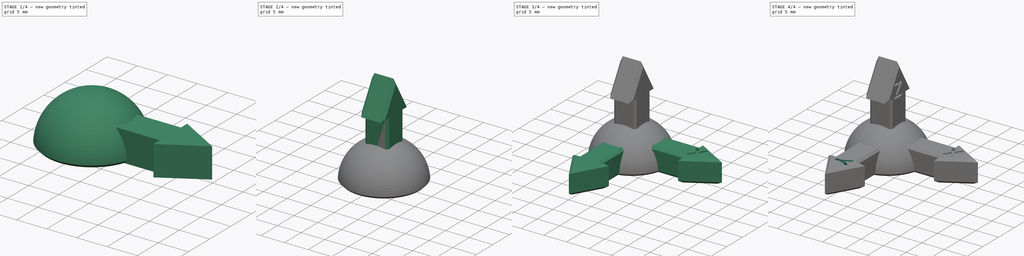
[diagram: build sequence overview — one tinted view per stage of 4, left to right]
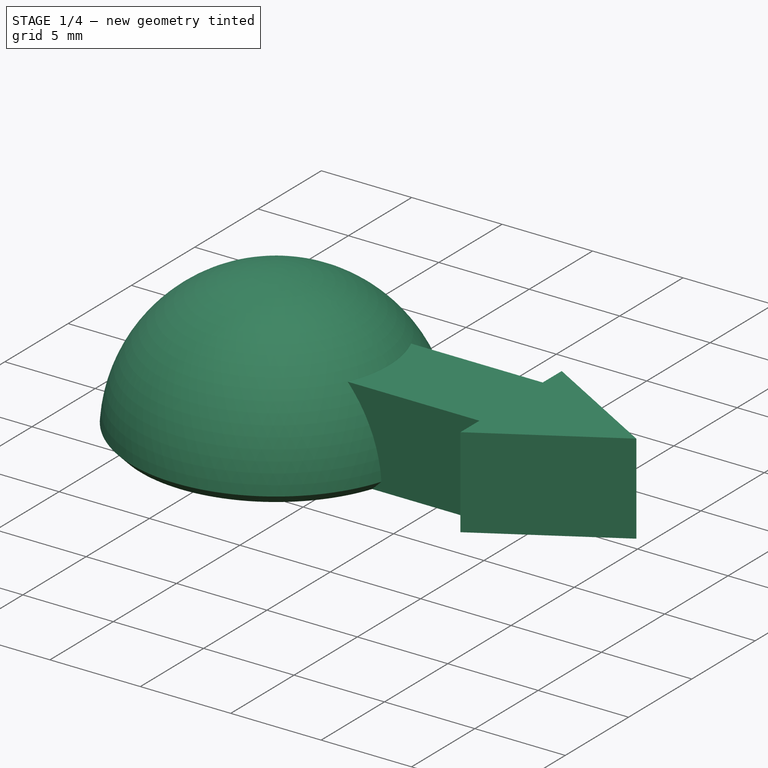
[diagram: stage 1 of 4 — iso view after this stage's code; geometry added in this stage tinted green]
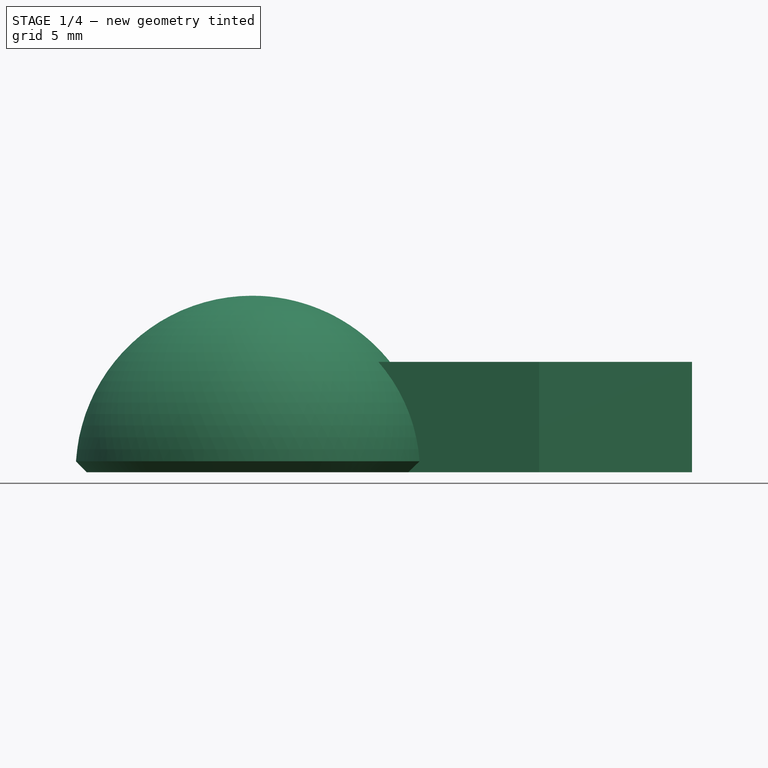
[diagram: stage 1 of 4 — front view after this stage's code; geometry added in this stage tinted green]
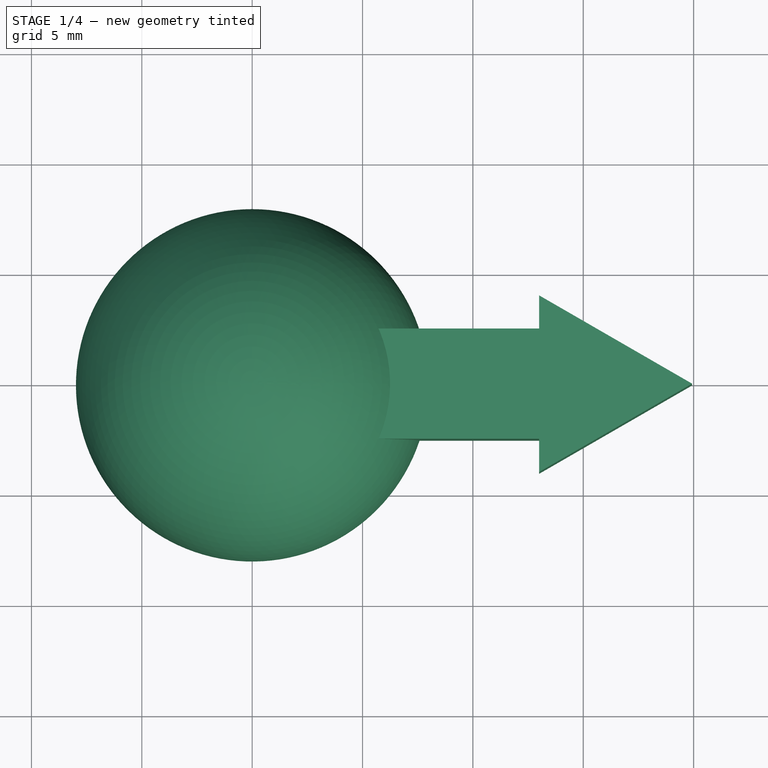
[diagram: stage 1 of 4 — top view after this stage's code; geometry added in this stage tinted green]
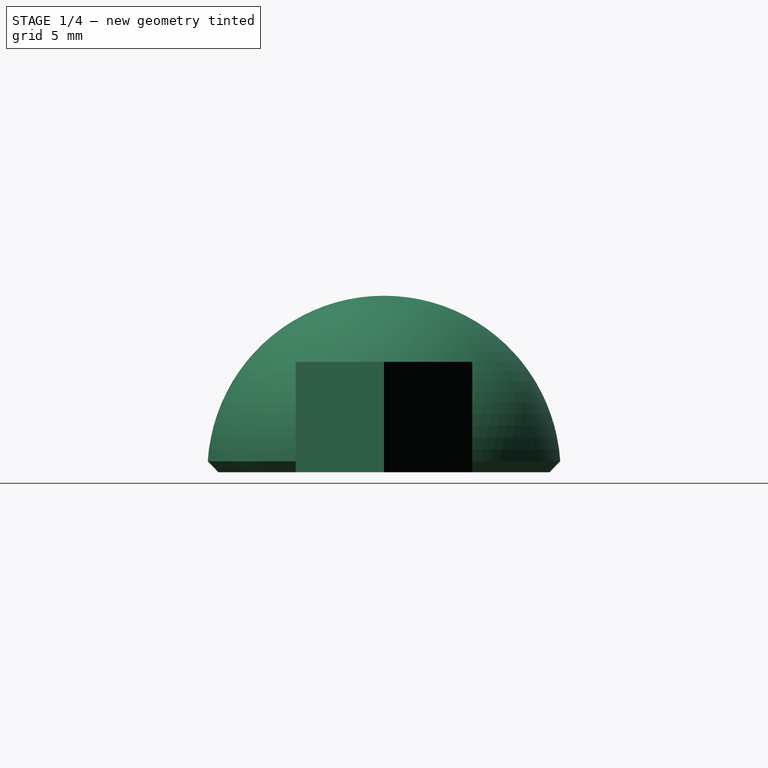
[diagram: stage 1 of 4 — right view after this stage's code; geometry added in this stage tinted green]
FCSTD DOCUMENT  (FreeCAD 0.19R)
Label: TECHDRAW
License: All rights reserved
LicenseURL: http://en.wikipedia.org/wiki/All_rights_reserved
objects: TechDraw::DrawProjGroupItem×30, TechDraw::DrawProjGroup×12, Part::Extrusion×4, Part::Part2DObjectPython×3, Part::Cut×3, Part::Chamfer×2, Part::FeaturePython×2, Spreadsheet::Sheet×1, Sketcher::SketchObject×1, Part::Sphere×1, Part::MultiFuse×1, TechDraw::DrawSVGTemplate×1, TechDraw::DrawPage×1
note: 17 computed .brp shape members not serialized (recipe doc carries the construction recipe); baked Part::Feature solids carry a one-line shape summary decoded from their .brp

FEATURE [Spreadsheet::Sheet] Spreadsheet
  cells = B1=largura; C1=Comprimento; D1=Altura; E1=diametro; A2=Reta; B2(lreta)=5; C2(creta)=13; A3=Seta; B3(lseta)=8; D3(hseta)=5; A4=Esfera; E4(diametro)=8
FEATURE [Sketcher::SketchObject] Sketch
  FullyConstrained = true
  expr: Constraints[23] = Spreadsheet.lseta
  expr: Constraints[22] = Spreadsheet.creta
  expr: Constraints[21] = Spreadsheet.lreta
  sketch-geometry (9):
    g0: LineSegment StartX=0 StartY=-2.5 StartZ=0 EndX=13 EndY=-2.5 EndZ=0
    g1: LineSegment StartX=13 StartY=-2.5 StartZ=0 EndX=13 EndY=2.5 EndZ=0
    g2: LineSegment StartX=13 StartY=2.5 StartZ=0 EndX=0 EndY=2.5 EndZ=0
    g3: LineSegment StartX=0 StartY=2.5 StartZ=0 EndX=0 EndY=-2.5 EndZ=0
    g4: LineSegment StartX=13 StartY=2.5 StartZ=0 EndX=13 EndY=4 EndZ=0
    g5: LineSegment StartX=13 StartY=4 StartZ=0 EndX=19.9282 EndY=0 EndZ=0
    g6: LineSegment StartX=19.9282 StartY=-1e-16 StartZ=0 EndX=13 EndY=-4 EndZ=0
    g7: LineSegment StartX=13 StartY=-4 StartZ=0 EndX=13 EndY=-2.5 EndZ=0
    g8: LineSegment StartX=13 StartY=-1e-16 StartZ=0 EndX=19.9282 EndY=-1e-16 EndZ=0
  constraints (24):
    c: Coincident(g0,g1)
    c: Coincident(g1,g2)
    c: Coincident(g2,g3)
    c: Coincident(g3,g0)
    c: Horizontal(g0)
    c: Horizontal(g2)
    c: Vertical(g1)
    c: Vertical(g3)
    c: Symmetric(g3,g3,g-1)
    c: Coincident(g2,g4)
    c: Vertical(g4)
    c: Coincident(g4,g5)
    c: Coincident(g5,g6)
    c: Coincident(g6,g7)
    c: Coincident(g7,g0)
    c: Vertical(g7)
    c: Coincident(g8,g5)
    c: Horizontal(g8)
    c: Angle(g5,g8) = 0.523599
    c: Symmetric(g1,g1,g8)
    c: Equal(g6,g5)
    c: DistanceY(g3,g3) = 5
    c: DistanceX(g2,g2) = 13
    c: DistanceY(g6,g4) = 8
FEATURE [Part::Extrusion] Extrude  label="Seta"
  Base = -> Sketch
  Dir = (0,0,1)
  DirMode = 2
  FaceMakerClass = Part::FaceMakerBullseye
  LengthFwd = 5
  LengthRev = 0
  Solid = true
  Symmetric = false
  expr: LengthFwd = Spreadsheet.hseta
FEATURE [Part::Sphere] Sphere
  Angle1 = 0
  Angle2 = 90
  Angle3 = 360
  AttacherType = Attacher::AttachEngine3D
  Radius = 8
  expr: Radius = Spreadsheet.diametro
FEATURE [Part::Chamfer] Chamfer001
  Base = -> Sphere
  Edges = 1 edges r=0.5: [Edge3]
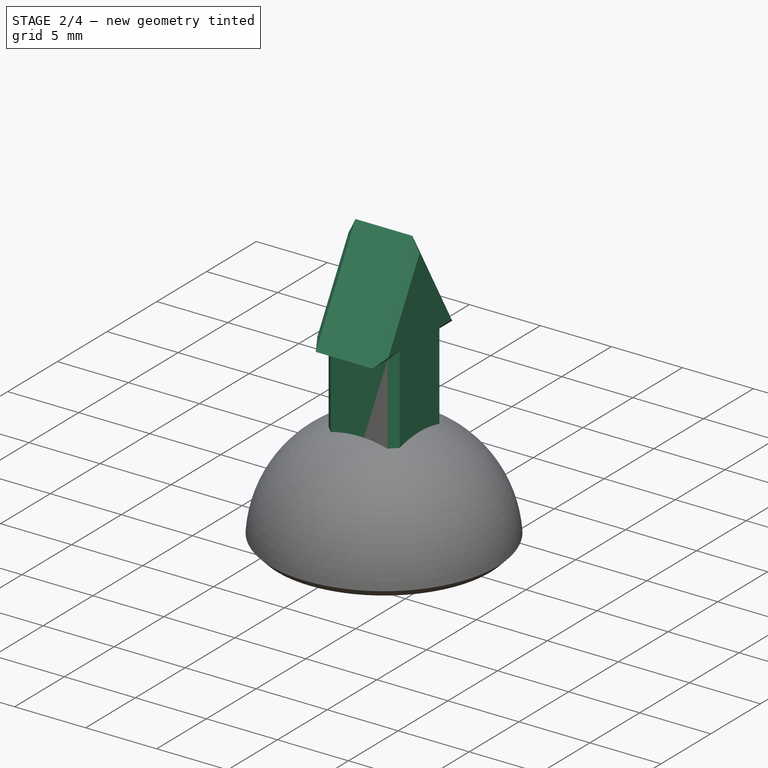
[diagram: stage 2 of 4 — iso view after this stage's code; geometry added in this stage tinted green]
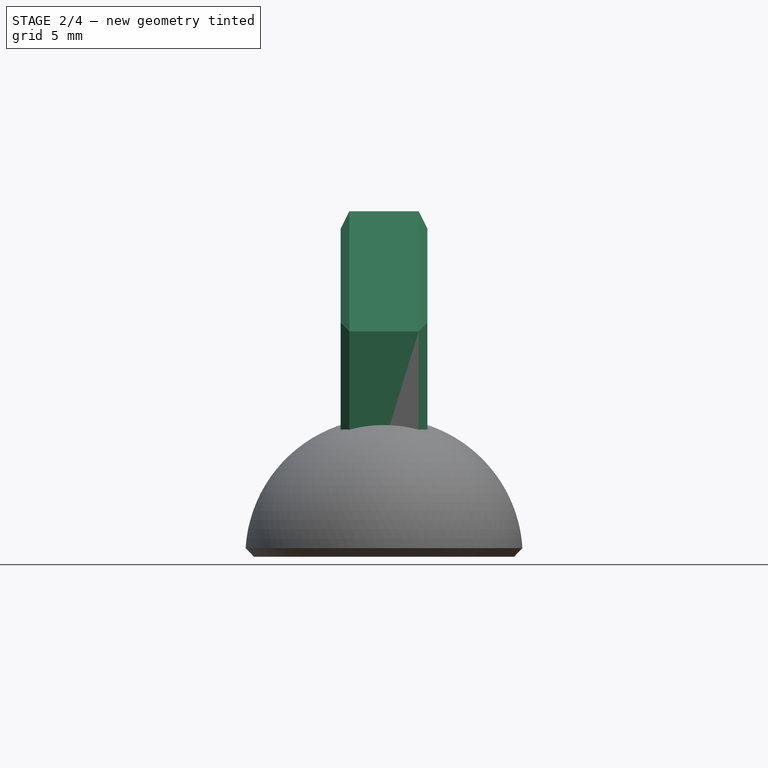
[diagram: stage 2 of 4 — front view after this stage's code; geometry added in this stage tinted green]
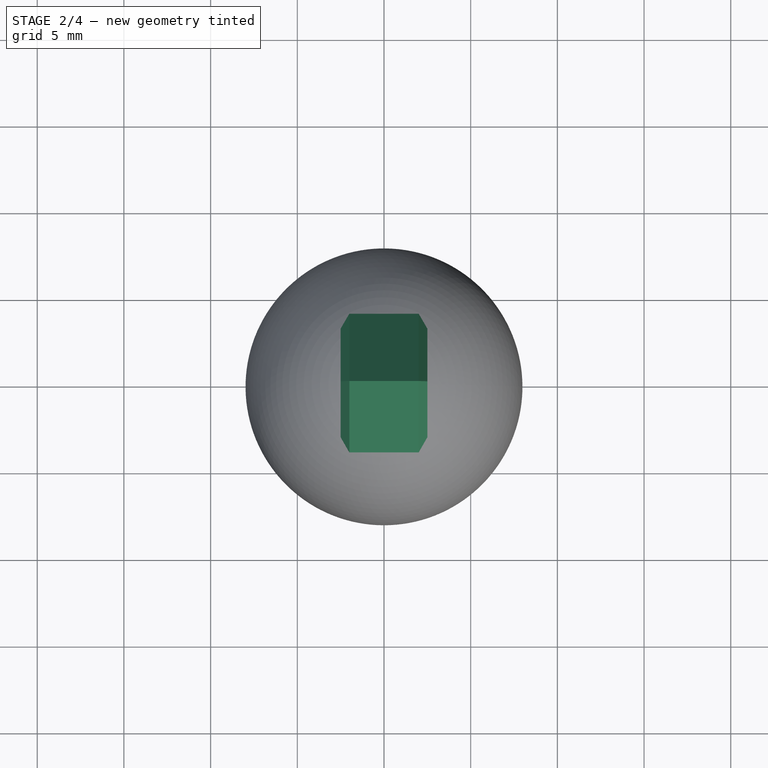
[diagram: stage 2 of 4 — top view after this stage's code; geometry added in this stage tinted green]
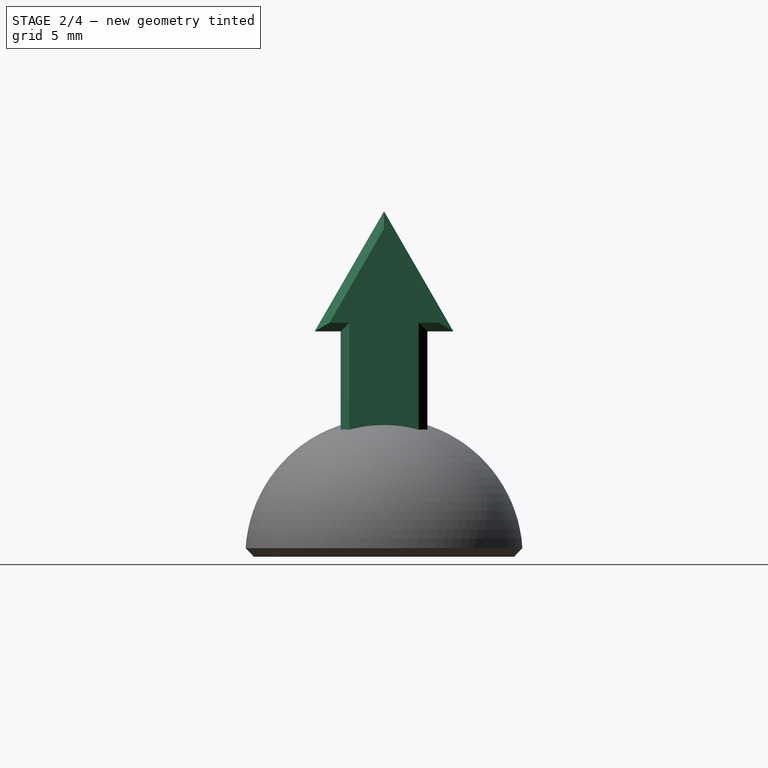
[diagram: stage 2 of 4 — right view after this stage's code; geometry added in this stage tinted green]
FEATURE [Part::Chamfer] Chamfer
  Base = -> Extrude
  Edges = 14 edges r=0.5: [Edge3,Edge4,Edge6,Edge7,Edge9,Edge10,Edge12,Edge13,Edge15,Edge16,Edge18,Edge19,Edge20,Edge21]
FEATURE [Part::FeaturePython] Clone  label="Chamfer"  # Draft clone (typed FeaturePython)
  AttacherType = Attacher::AttachEngine3D
  Fuse = false
  Objects = -> [Chamfer]
  Placement = pos=(0,0,0) rot=(0,0,-1;1.5708rad)
  Scale = (1,1,1)
FEATURE [Part::FeaturePython] Clone001  label="Chamfer"  # Draft clone (typed FeaturePython)
  AttacherType = Attacher::AttachEngine3D
  Fuse = false
  Objects = -> [Clone]
  Placement = pos=(2.5,0,0) rot=(0,-1,0;1.5708rad)
  Scale = (1,1,1)
  expr: .Placement.Base.x = Spreadsheet.lreta / 2
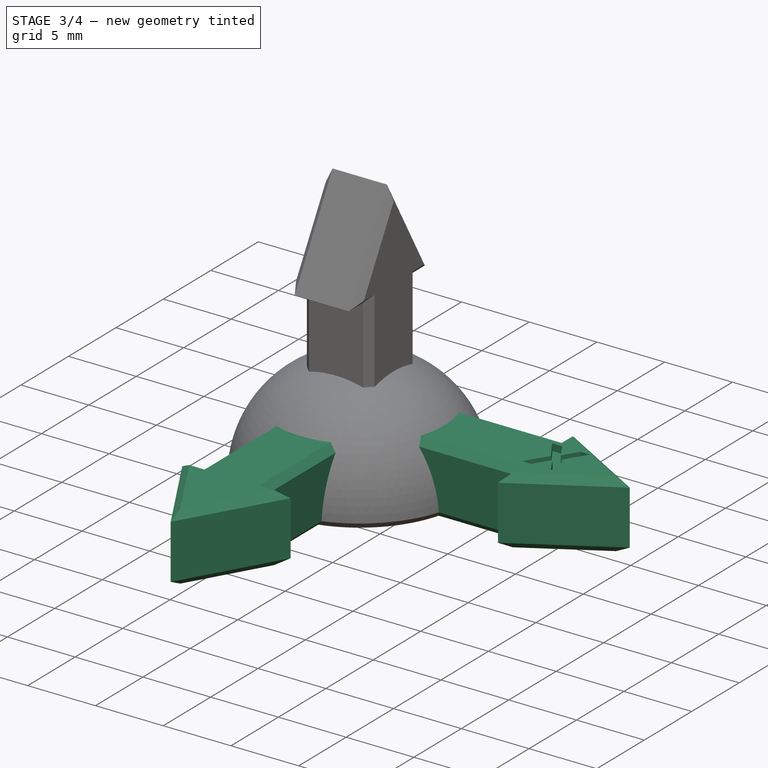
[diagram: stage 3 of 4 — iso view after this stage's code; geometry added in this stage tinted green]
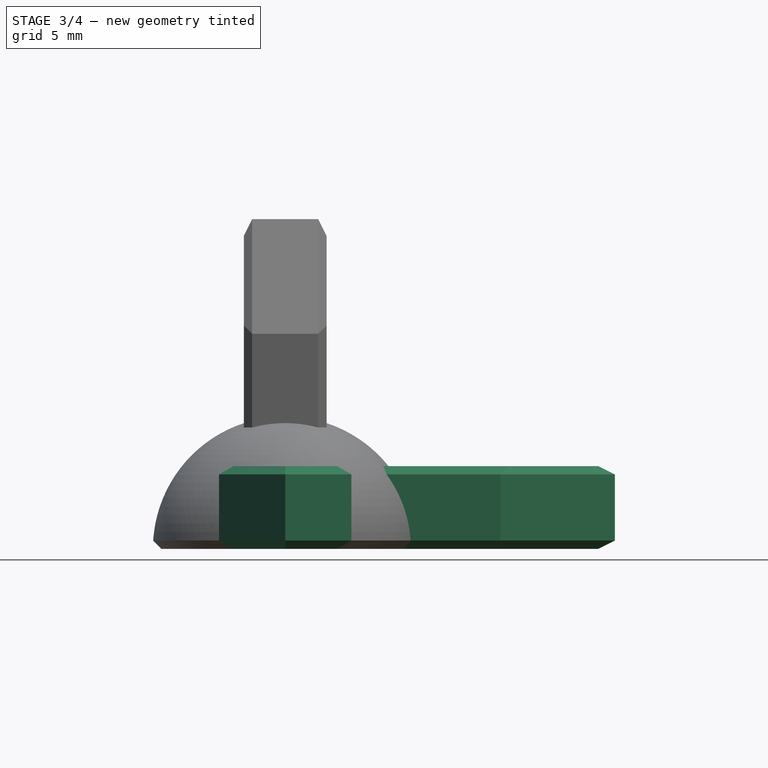
[diagram: stage 3 of 4 — front view after this stage's code; geometry added in this stage tinted green]
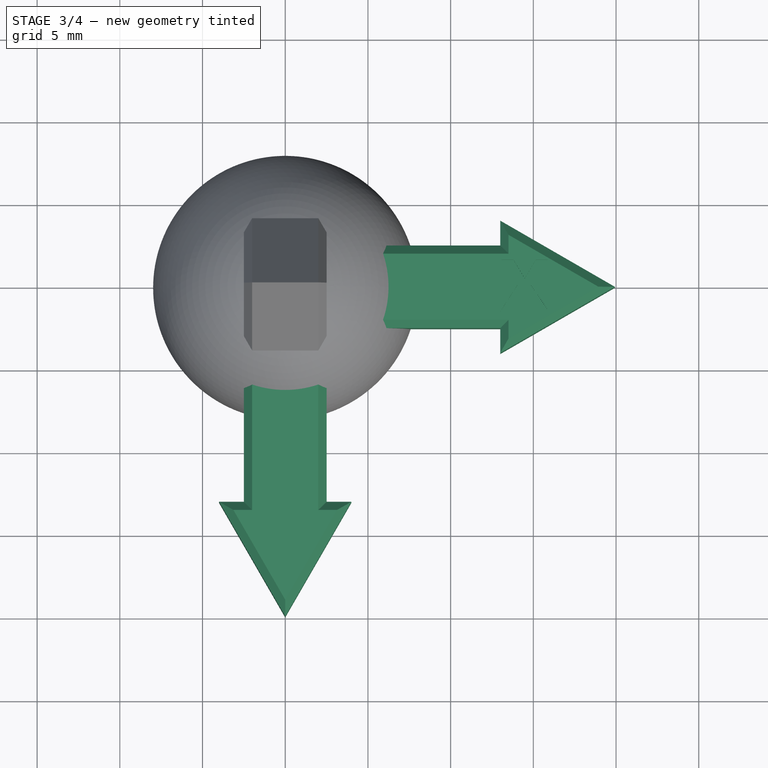
[diagram: stage 3 of 4 — top view after this stage's code; geometry added in this stage tinted green]
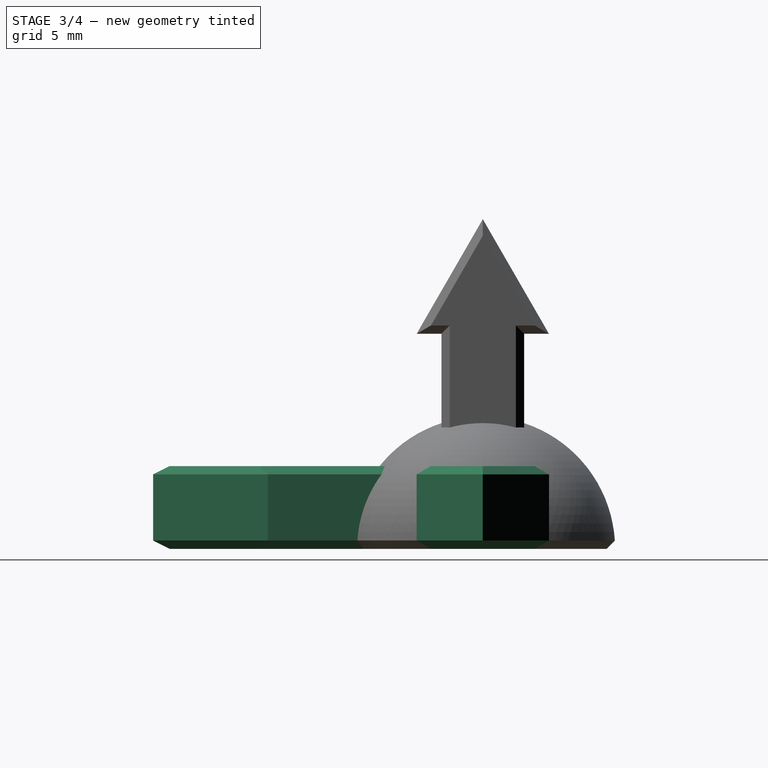
[diagram: stage 3 of 4 — right view after this stage's code; geometry added in this stage tinted green]
FEATURE [Part::Part2DObjectPython] ShapeString  label="X"  # Draft 2D object (typed FeaturePython)
  FontFile = <path>
  Placement = pos=(13,-1.5,5) rot=(0,0,1;0rad)
  Size = 4
  String = X
  Tracking = 0
  expr: Size = 4 * Spreadsheet.lreta / 5
  expr: .Placement.Base.x = Spreadsheet.creta
  expr: .Placement.Base.z = Spreadsheet.hseta
FEATURE [Part::Part2DObjectPython] ShapeString001  label="Y"  # Draft 2D object (typed FeaturePython)
  FontFile = <path>
  Placement = pos=(-1.5,-13,5) rot=(0,0,-1;1.5708rad)
  Size = 4
  String = Y
  Tracking = 0
  expr: .Placement.Base.z = Spreadsheet.hseta
  expr: Size = 4 * Spreadsheet.lreta / 5
  expr: .Placement.Base.y = -Spreadsheet.creta
FEATURE [Part::Part2DObjectPython] ShapeString002  label="Z"  # Draft 2D object (typed FeaturePython)
  FontFile = <path>
  Placement = pos=(2.5,-1.5,13) rot=(0.57735,0.57735,0.57735;2.0944rad)
  Size = 4
  String = Z
  Tracking = 0
  expr: Size = 4 * Spreadsheet.lreta / 5
  expr: .Placement.Base.x = Spreadsheet.hseta / 2
  expr: .Placement.Base.z = Spreadsheet.creta
FEATURE [Part::Extrusion] Extrude001
  Base = -> ShapeString
  Dir = (0,0,1)
  DirMode = 2
  FaceMakerClass = Part::FaceMakerBullseye
  LengthFwd = 0.5
  LengthRev = 0
  Reversed = true
  Solid = false
  Symmetric = false
FEATURE [Part::Extrusion] Extrude003
  Base = -> ShapeString002
  Dir = (1,-2e-16,2e-16)
  DirMode = 2
  FaceMakerClass = Part::FaceMakerBullseye
  LengthFwd = 0.5
  LengthRev = 0
  Reversed = true
  Solid = false
  Symmetric = false
FEATURE [Part::MultiFuse] Fusion
  Refine = true
  Shapes = -> [Chamfer001,Clone,Clone001,Chamfer]
FEATURE [Part::Cut] Cut
  Base = -> Fusion
  Refine = true
  Tool = -> Extrude001
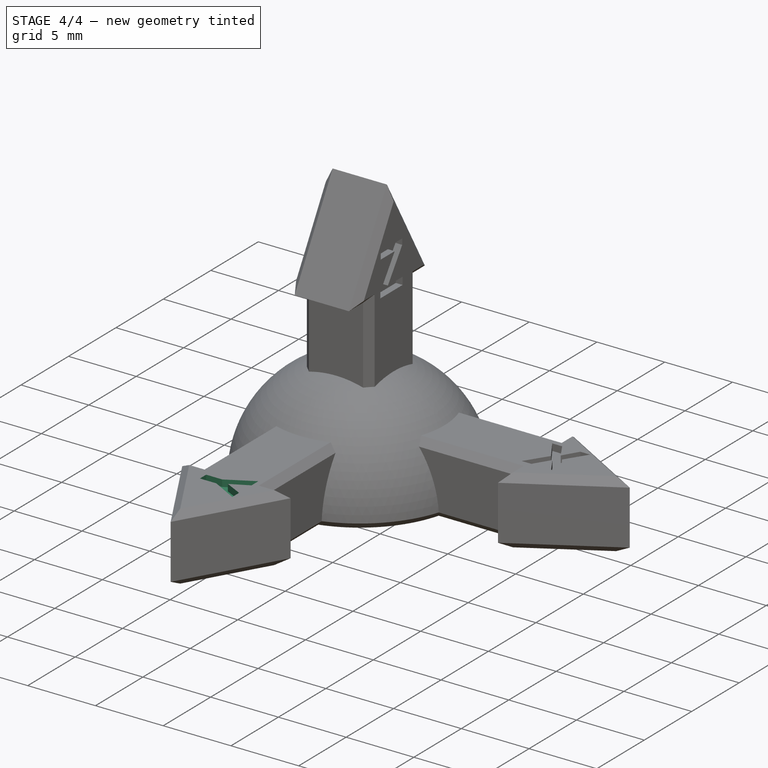
[diagram: stage 4 of 4 — iso view after this stage's code; geometry added in this stage tinted green]
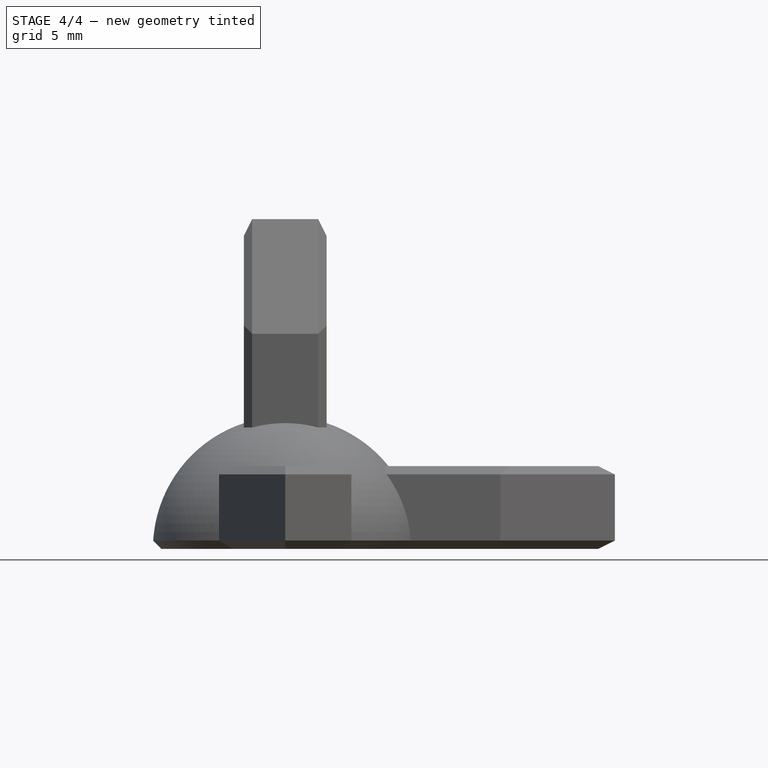
[diagram: stage 4 of 4 — front view after this stage's code; geometry added in this stage tinted green]
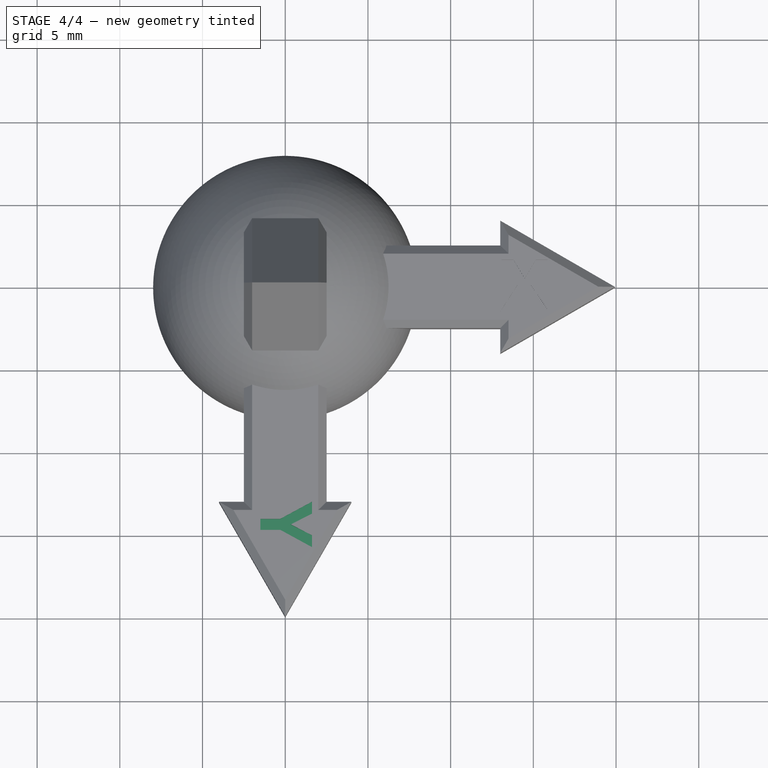
[diagram: stage 4 of 4 — top view after this stage's code; geometry added in this stage tinted green]
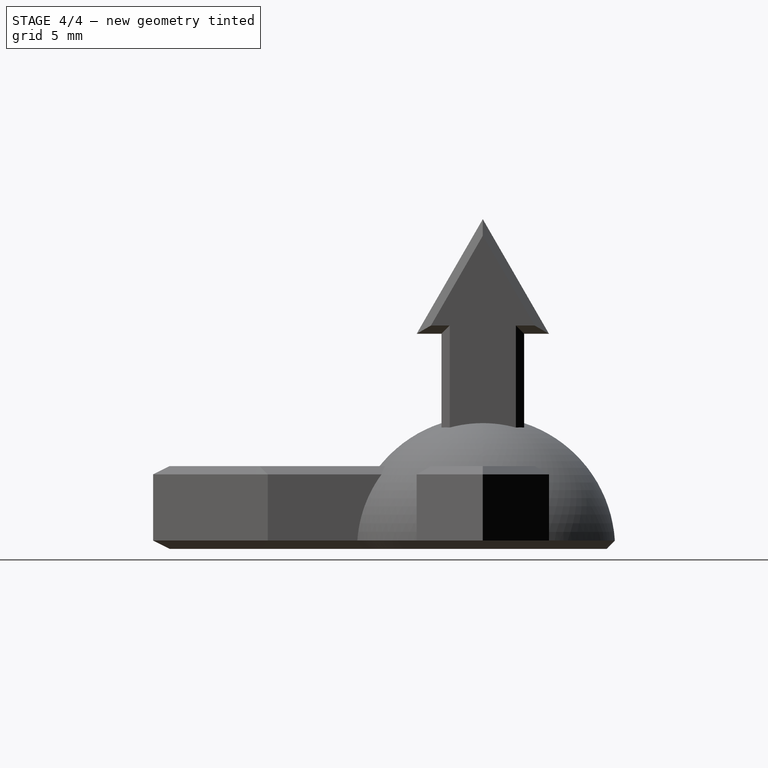
[diagram: stage 4 of 4 — right view after this stage's code; geometry added in this stage tinted green]
FEATURE [Part::Extrusion] Extrude002
  Base = -> ShapeString001
  Dir = (0,0,1)
  DirMode = 2
  FaceMakerClass = Part::FaceMakerBullseye
  LengthFwd = 0.5
  LengthRev = 0
  Reversed = true
  Solid = false
  Symmetric = false
FEATURE [Part::Cut] Cut001
  Base = -> Cut
  Refine = true
  Tool = -> Extrude003
FEATURE [Part::Cut] Cut002
  Base = -> Cut001
  Refine = true
  Tool = -> Extrude002
FEATURE [TechDraw::DrawSVGTemplate] Template
  EditableTexts = APPROVER_NAME=APPROVER NAME; AUTHOR_NAME=AUTHOR NAME; DATE=YYYY-MM-DD; DN=DN; OWNER_NAME=OWNER NAME; PM=PM; PN=PN; REVISION=REV A; RIGHTS=(R) DO NOT DUPLICATE THIS DRAWING TO THIRD PARTIES WITHOUT OWNER'S PERMISSION !; SCALE=M x:x; SHEET=99 of 99; SIZE=A2; TITLELINE-1=FreeCAD; TOLERANCE=+/- ?
  Height = 420
  Orientation = 1
  Width = 594
FEATURE [TechDraw::DrawProjGroupItem] ProjItem  label="Front"
  CoarseView = false
  Direction = (0,0,1)
  Focus = 100
  HardHidden = false
  IsoCount = 0
  IsoHidden = false
  IsoVisible = false
  LockPosition = true
  Perspective = false
  Rotation = 0
  RotationVector = (0.65,0.754,-0.096)
  ScaleType = 2
  SeamHidden = false
  SeamVisible = true
  SmoothHidden = false
  SmoothVisible = true
  Source = -> [Cut002]
  Type = 0
  X = 0
  XDirection = (-0.5,-1,0)
  Y = 0
FEATURE [TechDraw::DrawProjGroupItem] ProjItem001  label="Right"
  CoarseView = false
  Direction = (0,0,1)
  Focus = 100
  HardHidden = false
  IsoCount = 0
  IsoHidden = false
  IsoVisible = false
  LockPosition = false
  Perspective = false
  Rotation = 0
  RotationVector = (1,0,0)
  ScaleType = 2
  SeamHidden = false
  SeamVisible = true
  SmoothHidden = false
  SmoothVisible = true
  Source = -> [Cut002]
  Type = 2
  X = -38.1827
  XDirection = (-1,-1,0)
  Y = 0
FEATURE [TechDraw::DrawProjGroupItem] ProjItem002  label="Left"
  CoarseView = false
  Direction = (0,0,1)
  Focus = 100
  HardHidden = false
  IsoCount = 0
  IsoHidden = false
  IsoVisible = false
  LockPosition = false
  Perspective = false
  Rotation = 0
  RotationVector = (1,0,0)
  ScaleType = 2
  SeamHidden = false
  SeamVisible = true
  SmoothHidden = false
  SmoothVisible = true
  Source = -> [Cut002]
  Type = 1
  X = 37.4491
  XDirection = (0,-1,0)
  Y = 0
FEATURE [TechDraw::DrawProjGroupItem] ProjItem003  label="Rear"
  CoarseView = false
  Direction = (0,0,1)
  Focus = 100
  HardHidden = false
  IsoCount = 0
  IsoHidden = false
  IsoVisible = false
  LockPosition = false
  Perspective = false
  Rotation = 0
  RotationVector = (1,0,0)
  ScaleType = 2
  SeamHidden = false
  SeamVisible = true
  SmoothHidden = false
  SmoothVisible = true
  Source = -> [Cut002]
  Type = 3
  X = 75.705
  XDirection = (0.5,-1,0)
  Y = 0
FEATURE [TechDraw::DrawProjGroup] ProjGroup
  Anchor = -> ProjItem
  AutoDistribute = true
  LockPosition = false
  ProjectionType = 0
  Rotation = 0
  ScaleType = 0
  Source = -> [Cut002]
  Views = -> [ProjItem,ProjItem001,ProjItem002,ProjItem003]
  X = 125.665
  Y = 340.191
  spacingX = 10
  spacingY = 15
FEATURE [TechDraw::DrawProjGroupItem] ProjItem004  label="Front"
  CoarseView = false
  Direction = (0,0,1)
  Focus = 100
  HardHidden = false
  IsoCount = 0
  IsoHidden = false
  IsoVisible = false
  LockPosition = true
  Perspective = false
  Rotation = 0
  RotationVector = (0.65,0.754,-0.096)
  ScaleType = 2
  SeamHidden = false
  SeamVisible = true
  SmoothHidden = false
  SmoothVisible = true
  Source = -> [Cut002]
  Type = 0
  X = 0
  XDirection = (1,-1,0)
  Y = 0
FEATURE [TechDraw::DrawProjGroup] ProjGroup001
  Anchor = -> ProjItem004
  AutoDistribute = true
  LockPosition = false
  ProjectionType = 0
  Rotation = 0
  ScaleType = 0
  Source = -> [Cut002]
  Views = -> [ProjItem004]
  X = 239.496
  Y = 339.022
  spacingX = 15
  spacingY = 15
FEATURE [TechDraw::DrawProjGroupItem] ProjItem008  label="Front"
  CoarseView = false
  Direction = (0,0,1)
  Focus = 100
  HardHidden = false
  IsoCount = 0
  IsoHidden = false
  IsoVisible = false
  LockPosition = true
  Perspective = false
  Rotation = 0
  RotationVector = (0.65,0.754,-0.096)
  ScaleType = 2
  SeamHidden = false
  SeamVisible = true
  SmoothHidden = false
  SmoothVisible = true
  Source = -> [Cut002]
  Type = 0
  X = 0
  XDirection = (-0.5,0.5,0)
  Y = 0
FEATURE [TechDraw::DrawProjGroupItem] ProjItem009  label="Right"
  CoarseView = false
  Direction = (0,0,1)
  Focus = 100
  HardHidden = false
  IsoCount = 0
  IsoHidden = false
  IsoVisible = false
  LockPosition = false
  Perspective = false
  Rotation = 0
  RotationVector = (1,0,0)
  ScaleType = 2
  SeamHidden = false
  SeamVisible = true
  SmoothHidden = false
  SmoothVisible = true
  Source = -> [Cut002]
  Type = 2
  X = -42.128
  XDirection = (-1,0.5,0)
  Y = 0
FEATURE [TechDraw::DrawProjGroupItem] ProjItem010  label="Left"
  CoarseView = false
  Direction = (0,0,1)
  Focus = 100
  HardHidden = false
  IsoCount = 0
  IsoHidden = false
  IsoVisible = false
  LockPosition = false
  Perspective = false
  Rotation = 0
  RotationVector = (1,0,0)
  ScaleType = 2
  SeamHidden = false
  SeamVisible = true
  SmoothHidden = false
  SmoothVisible = true
  Source = -> [Cut002]
  Type = 1
  X = 43.2052
  XDirection = (0,0.5,0)
  Y = 0
FEATURE [TechDraw::DrawProjGroupItem] ProjItem011  label="Rear"
  CoarseView = false
  Direction = (0,0,1)
  Focus = 100
  HardHidden = false
  IsoCount = 0
  IsoHidden = false
  IsoVisible = false
  LockPosition = false
  Perspective = false
  Rotation = 0
  RotationVector = (1,0,0)
  ScaleType = 2
  SeamHidden = false
  SeamVisible = true
  SmoothHidden = false
  SmoothVisible = true
  Source = -> [Cut002]
  Type = 3
  X = 85.7894
  XDirection = (0.5,0.5,0)
  Y = 0
FEATURE [TechDraw::DrawProjGroup] ProjGroup002
  Anchor = -> ProjItem008
  AutoDistribute = true
  LockPosition = false
  ProjectionType = 0
  Rotation = 0
  ScaleType = 0
  Source = -> [Cut002]
  Views = -> [ProjItem008,ProjItem009,ProjItem010,ProjItem011]
  X = 126.07
  Y = 293.147
  spacingX = 15
  spacingY = 15
FEATURE [TechDraw::DrawProjGroupItem] ProjItem012  label="Front"
  CoarseView = false
  Direction = (0,0,1)
  Focus = 100
  HardHidden = false
  IsoCount = 0
  IsoHidden = false
  IsoVisible = false
  LockPosition = true
  Perspective = false
  Rotation = 0
  RotationVector = (-0.217,0.535,-0.28)
  ScaleType = 2
  SeamHidden = false
  SeamVisible = true
  SmoothHidden = false
  SmoothVisible = true
  Source = -> [Cut002]
  Type = 0
  X = 0
  XDirection = (1,0.5,0)
  Y = 0
FEATURE [TechDraw::DrawProjGroup] ProjGroup003
  Anchor = -> ProjItem012
  AutoDistribute = true
  LockPosition = false
  ProjectionType = 0
  Rotation = 0
  ScaleType = 0
  Source = -> [Cut002]
  Views = -> [ProjItem012]
  X = 256.451
  Y = 294.97
  spacingX = 15
  spacingY = 15
FEATURE [TechDraw::DrawProjGroupItem] ProjItem016  label="Front"
  CoarseView = false
  Direction = (0,0,1)
  Focus = 100
  HardHidden = false
  IsoCount = 0
  IsoHidden = false
  IsoVisible = false
  LockPosition = true
  Perspective = false
  Rotation = 0
  RotationVector = (-0.217,0.535,-0.28)
  ScaleType = 2
  SeamHidden = false
  SeamVisible = true
  SmoothHidden = false
  SmoothVisible = true
  Source = -> [Cut002]
  Type = 0
  X = 0
  XDirection = (1,0,1)
  Y = 0
FEATURE [TechDraw::DrawProjGroupItem] ProjItem017  label="Right"
  CoarseView = false
  Direction = (0,0,1)
  Focus = 100
  HardHidden = false
  IsoCount = 0
  IsoHidden = false
  IsoVisible = false
  LockPosition = false
  Perspective = false
  Rotation = 0
  RotationVector = (1,0,0)
  ScaleType = 2
  SeamHidden = false
  SeamVisible = true
  SmoothHidden = false
  SmoothVisible = true
  Source = -> [Cut002]
  Type = 2
  X = -42.9126
  XDirection = (1,0,1)
  Y = 0
FEATURE [TechDraw::DrawProjGroupItem] ProjItem018  label="Left"
  CoarseView = false
  Direction = (0,0,1)
  Focus = 100
  HardHidden = false
  IsoCount = 0
  IsoHidden = false
  IsoVisible = false
  LockPosition = false
  Perspective = false
  Rotation = 0
  RotationVector = (1,0,0)
  ScaleType = 2
  SeamHidden = false
  SeamVisible = true
  SmoothHidden = false
  SmoothVisible = true
  Source = -> [Cut002]
  Type = 1
  X = 42.9126
  XDirection = (1,0,1)
  Y = 0
FEATURE [TechDraw::DrawProjGroupItem] ProjItem019  label="Rear"
  CoarseView = false
  Direction = (0,0,1)
  Focus = 100
  HardHidden = false
  IsoCount = 0
  IsoHidden = false
  IsoVisible = false
  LockPosition = false
  Perspective = false
  Rotation = 0
  RotationVector = (1,0,0)
  ScaleType = 2
  SeamHidden = false
  SeamVisible = true
  SmoothHidden = false
  SmoothVisible = true
  Source = -> [Cut002]
  Type = 3
  X = 85.8252
  XDirection = (1,0,1)
  Y = 0
FEATURE [TechDraw::DrawProjGroup] ProjGroup004
  Anchor = -> ProjItem016
  AutoDistribute = true
  LockPosition = false
  ProjectionType = 0
  Rotation = 0
  ScaleType = 0
  Source = -> [Cut002]
  Views = -> [ProjItem016,ProjItem017,ProjItem018,ProjItem019]
  X = 128.904
  Y = 243.841
  spacingX = 15
  spacingY = 15
FEATURE [TechDraw::DrawProjGroupItem] ProjItem020  label="Front"
  CoarseView = false
  Direction = (0,0,1)
  Focus = 100
  HardHidden = false
  IsoCount = 0
  IsoHidden = false
  IsoVisible = false
  LockPosition = true
  Perspective = false
  Rotation = 0
  RotationVector = (-0.217,0.535,-0.28)
  ScaleType = 2
  SeamHidden = false
  SeamVisible = true
  SmoothHidden = false
  SmoothVisible = true
  Source = -> [Cut002]
  Type = 0
  X = 0
  XDirection = (1,0,1)
  Y = 0
FEATURE [TechDraw::DrawProjGroup] ProjGroup005
  Anchor = -> ProjItem020
  AutoDistribute = true
  LockPosition = false
  ProjectionType = 0
  Rotation = 0
  ScaleType = 0
  Source = -> [Cut002]
  Views = -> [ProjItem020]
  X = 258.359
  Y = 244.56
  spacingX = 15
  spacingY = 15
FEATURE [TechDraw::DrawProjGroupItem] ProjItem024  label="Front"
  CoarseView = false
  Direction = (0,0,1)
  Focus = 100
  HardHidden = false
  IsoCount = 0
  IsoHidden = false
  IsoVisible = false
  LockPosition = true
  Perspective = false
  Rotation = 0
  RotationVector = (-0.217,0.535,-0.28)
  ScaleType = 2
  SeamHidden = false
  SeamVisible = true
  SmoothHidden = false
  SmoothVisible = true
  Source = -> [Cut002]
  Type = 0
  X = 0
  XDirection = (1,0,1)
  Y = 0
FEATURE [TechDraw::DrawProjGroupItem] ProjItem025  label="Right"
  CoarseView = false
  Direction = (0,0,1)
  Focus = 100
  HardHidden = false
  IsoCount = 0
  IsoHidden = false
  IsoVisible = false
  LockPosition = false
  Perspective = false
  Rotation = 0
  RotationVector = (1,0,0)
  ScaleType = 2
  SeamHidden = false
  SeamVisible = true
  SmoothHidden = false
  SmoothVisible = true
  Source = -> [Cut002]
  Type = 2
  X = -42.9126
  XDirection = (1,0,1)
  Y = 0
FEATURE [TechDraw::DrawProjGroupItem] ProjItem026  label="Left"
  CoarseView = false
  Direction = (0,0,1)
  Focus = 100
  HardHidden = false
  IsoCount = 0
  IsoHidden = false
  IsoVisible = false
  LockPosition = false
  Perspective = false
  Rotation = 0
  RotationVector = (1,0,0)
  ScaleType = 2
  SeamHidden = false
  SeamVisible = true
  SmoothHidden = false
  SmoothVisible = true
  Source = -> [Cut002]
  Type = 1
  X = 42.9126
  XDirection = (1,0,1)
  Y = 0
FEATURE [TechDraw::DrawProjGroupItem] ProjItem027  label="Rear"
  CoarseView = false
  Direction = (0,0,1)
  Focus = 100
  HardHidden = false
  IsoCount = 0
  IsoHidden = false
  IsoVisible = false
  LockPosition = false
  Perspective = false
  Rotation = 0
  RotationVector = (1,0,0)
  ScaleType = 2
  SeamHidden = false
  SeamVisible = true
  SmoothHidden = false
  SmoothVisible = true
  Source = -> [Cut002]
  Type = 3
  X = 85.8252
  XDirection = (1,0,1)
  Y = 0
FEATURE [TechDraw::DrawProjGroup] ProjGroup006
  Anchor = -> ProjItem024
  AutoDistribute = true
  LockPosition = false
  ProjectionType = 0
  Rotation = 0
  ScaleType = 0
  Source = -> [Cut002]
  Views = -> [ProjItem024,ProjItem025,ProjItem026,ProjItem027]
  X = 127.573
  Y = 196.468
  spacingX = 15
  spacingY = 15
FEATURE [TechDraw::DrawProjGroupItem] ProjItem028  label="Front"
  CoarseView = false
  Direction = (0,0,1)
  Focus = 100
  HardHidden = false
  IsoCount = 0
  IsoHidden = false
  IsoVisible = false
  LockPosition = true
  Perspective = false
  Rotation = 0
  RotationVector = (-0.217,0.535,-0.28)
  ScaleType = 2
  SeamHidden = false
  SeamVisible = true
  SmoothHidden = false
  SmoothVisible = true
  Source = -> [Cut002]
  Type = 0
  X = 0
  XDirection = (1,0,1)
  Y = 0
FEATURE [TechDraw::DrawProjGroup] ProjGroup007
  Anchor = -> ProjItem028
  AutoDistribute = true
  LockPosition = false
  ProjectionType = 0
  Rotation = 0
  ScaleType = 0
  Source = -> [Cut002]
  Views = -> [ProjItem028]
  X = 259.349
  Y = 195.144
  spacingX = 15
  spacingY = 15
FEATURE [TechDraw::DrawProjGroupItem] ProjItem032  label="Front"
  CoarseView = false
  Direction = (0,0,1)
  Focus = 100
  HardHidden = false
  IsoCount = 0
  IsoHidden = false
  IsoVisible = false
  LockPosition = true
  Perspective = false
  Rotation = 0
  RotationVector = (-0.217,0.535,-0.28)
  ScaleType = 2
  SeamHidden = false
  SeamVisible = true
  SmoothHidden = false
  SmoothVisible = true
  Source = -> [Cut002]
  Type = 0
  X = 0
  XDirection = (1,0,1)
  Y = 0
FEATURE [TechDraw::DrawProjGroupItem] ProjItem033  label="Right"
  CoarseView = false
  Direction = (0,0,1)
  Focus = 100
  HardHidden = false
  IsoCount = 0
  IsoHidden = false
  IsoVisible = false
  LockPosition = false
  Perspective = false
  Rotation = 0
  RotationVector = (1,0,0)
  ScaleType = 2
  SeamHidden = false
  SeamVisible = true
  SmoothHidden = false
  SmoothVisible = true
  Source = -> [Cut002]
  Type = 2
  X = -42.9126
  XDirection = (1,0,1)
  Y = 0
FEATURE [TechDraw::DrawProjGroupItem] ProjItem034  label="Left"
  CoarseView = false
  Direction = (0,0,1)
  Focus = 100
  HardHidden = false
  IsoCount = 0
  IsoHidden = false
  IsoVisible = false
  LockPosition = false
  Perspective = false
  Rotation = 0
  RotationVector = (1,0,0)
  ScaleType = 2
  SeamHidden = false
  SeamVisible = true
  SmoothHidden = false
  SmoothVisible = true
  Source = -> [Cut002]
  Type = 1
  X = 42.9126
  XDirection = (1,0,1)
  Y = 0
FEATURE [TechDraw::DrawProjGroupItem] ProjItem035  label="Rear"
  CoarseView = false
  Direction = (0,0,1)
  Focus = 100
  HardHidden = false
  IsoCount = 0
  IsoHidden = false
  IsoVisible = false
  LockPosition = false
  Perspective = false
  Rotation = 0
  RotationVector = (1,0,0)
  ScaleType = 2
  SeamHidden = false
  SeamVisible = true
  SmoothHidden = false
  SmoothVisible = true
  Source = -> [Cut002]
  Type = 3
  X = 85.8252
  XDirection = (1,0,1)
  Y = 0
FEATURE [TechDraw::DrawProjGroup] ProjGroup008
  Anchor = -> ProjItem032
  AutoDistribute = true
  LockPosition = false
  ProjectionType = 0
  Rotation = 0
  ScaleType = 0
  Source = -> [Cut002]
  Views = -> [ProjItem032,ProjItem033,ProjItem034,ProjItem035]
  X = 127.445
  Y = 150.984
  spacingX = 15
  spacingY = 15
FEATURE [TechDraw::DrawProjGroupItem] ProjItem036  label="Front"
  CoarseView = false
  Direction = (0,0,1)
  Focus = 100
  HardHidden = false
  IsoCount = 0
  IsoHidden = false
  IsoVisible = false
  LockPosition = true
  Perspective = false
  Rotation = 0
  RotationVector = (-0.217,0.535,-0.28)
  ScaleType = 2
  SeamHidden = false
  SeamVisible = true
  SmoothHidden = false
  SmoothVisible = true
  Source = -> [Cut002]
  Type = 0
  X = 0
  XDirection = (1,0,1)
  Y = 0
FEATURE [TechDraw::DrawProjGroup] ProjGroup009
  Anchor = -> ProjItem036
  AutoDistribute = true
  LockPosition = false
  ProjectionType = 0
  Rotation = 0
  ScaleType = 0
  Source = -> [Cut002]
  Views = -> [ProjItem036]
  X = 263.299
  Y = 150.303
  spacingX = 15
  spacingY = 15
FEATURE [TechDraw::DrawProjGroupItem] ProjItem040  label="Front"
  CoarseView = false
  Direction = (0,0,1)
  Focus = 100
  HardHidden = false
  IsoCount = 0
  IsoHidden = false
  IsoVisible = false
  LockPosition = true
  Perspective = false
  Rotation = 0
  RotationVector = (-0.217,0.535,-0.28)
  ScaleType = 2
  SeamHidden = false
  SeamVisible = true
  SmoothHidden = false
  SmoothVisible = true
  Source = -> [Cut002]
  Type = 0
  X = 0
  XDirection = (1,0,1)
  Y = 0
FEATURE [TechDraw::DrawProjGroupItem] ProjItem041  label="Right"
  CoarseView = false
  Direction = (0,0,1)
  Focus = 100
  HardHidden = false
  IsoCount = 0
  IsoHidden = false
  IsoVisible = false
  LockPosition = false
  Perspective = false
  Rotation = 0
  RotationVector = (1,0,0)
  ScaleType = 2
  SeamHidden = false
  SeamVisible = true
  SmoothHidden = false
  SmoothVisible = true
  Source = -> [Cut002]
  Type = 2
  X = -42.9126
  XDirection = (1,0,1)
  Y = 0
FEATURE [TechDraw::DrawProjGroupItem] ProjItem042  label="Left"
  CoarseView = false
  Direction = (0,0,1)
  Focus = 100
  HardHidden = false
  IsoCount = 0
  IsoHidden = false
  IsoVisible = false
  LockPosition = false
  Perspective = false
  Rotation = 0
  RotationVector = (1,0,0)
  ScaleType = 2
  SeamHidden = false
  SeamVisible = true
  SmoothHidden = false
  SmoothVisible = true
  Source = -> [Cut002]
  Type = 1
  X = 42.9126
  XDirection = (1,0,1)
  Y = 0
FEATURE [TechDraw::DrawProjGroupItem] ProjItem043  label="Rear"
  CoarseView = false
  Direction = (0,0,1)
  Focus = 100
  HardHidden = false
  IsoCount = 0
  IsoHidden = false
  IsoVisible = false
  LockPosition = false
  Perspective = false
  Rotation = 0
  RotationVector = (1,0,0)
  ScaleType = 2
  SeamHidden = false
  SeamVisible = true
  SmoothHidden = false
  SmoothVisible = true
  Source = -> [Cut002]
  Type = 3
  X = 85.8252
  XDirection = (1,0,1)
  Y = 0
FEATURE [TechDraw::DrawProjGroup] ProjGroup010
  Anchor = -> ProjItem040
  AutoDistribute = true
  LockPosition = false
  ProjectionType = 0
  Rotation = 0
  ScaleType = 0
  Source = -> [Cut002]
  Views = -> [ProjItem040,ProjItem041,ProjItem042,ProjItem043]
  X = 128.818
  Y = 99.1015
  spacingX = 15
  spacingY = 15
FEATURE [TechDraw::DrawProjGroupItem] ProjItem044  label="Front"
  CoarseView = false
  Direction = (0,0,1)
  Focus = 100
  HardHidden = false
  IsoCount = 0
  IsoHidden = false
  IsoVisible = false
  LockPosition = true
  Perspective = false
  Rotation = 0
  RotationVector = (-0.217,0.535,-0.28)
  ScaleType = 2
  SeamHidden = false
  SeamVisible = true
  SmoothHidden = false
  SmoothVisible = true
  Source = -> [Cut002]
  Type = 0
  X = 0
  XDirection = (1,0,1)
  Y = 0
FEATURE [TechDraw::DrawProjGroup] ProjGroup011
  Anchor = -> ProjItem044
  AutoDistribute = true
  LockPosition = false
  ProjectionType = 0
  Rotation = 0
  ScaleType = 0
  Source = -> [Cut002]
  Views = -> [ProjItem044]
  X = 261.17
  Y = 97.8509
  spacingX = 15
  spacingY = 15
FEATURE [TechDraw::DrawPage] Page
  KeepUpdated = true
  NextBalloonIndex = 1
  ProjectionType = 0
  Template = -> Template
  Views = -> [ProjGroup,ProjGroup001,ProjGroup002,ProjGroup003,ProjGroup004,ProjGroup005,ProjGroup006,ProjGroup007,ProjGroup008,ProjGroup009,ProjGroup010,ProjGroup011]
note: 3 file-system paths scrubbed to <path> (originals preserved in the JSON sidecar)
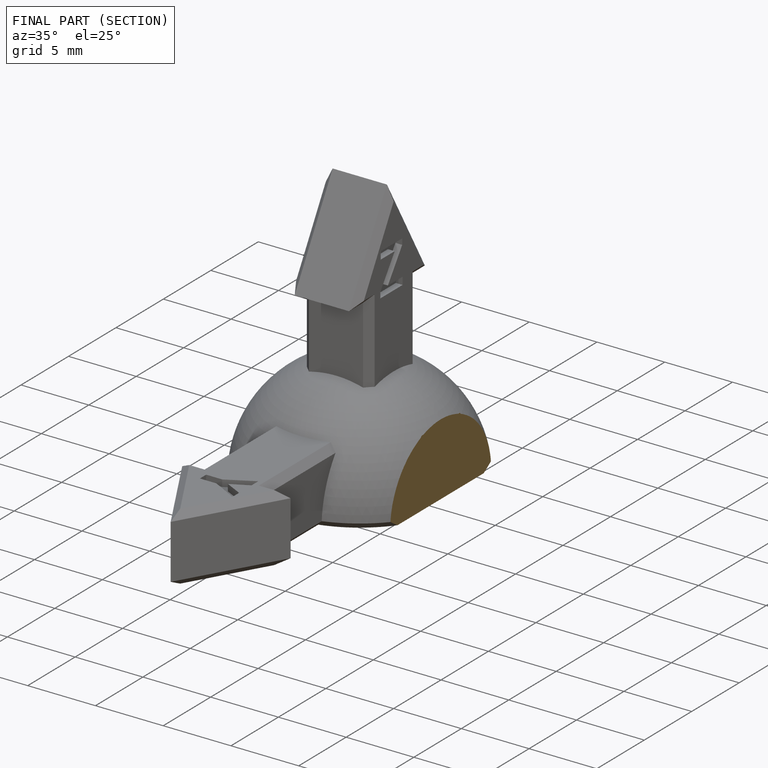
[diagram: finished part — half-section view (interior)]
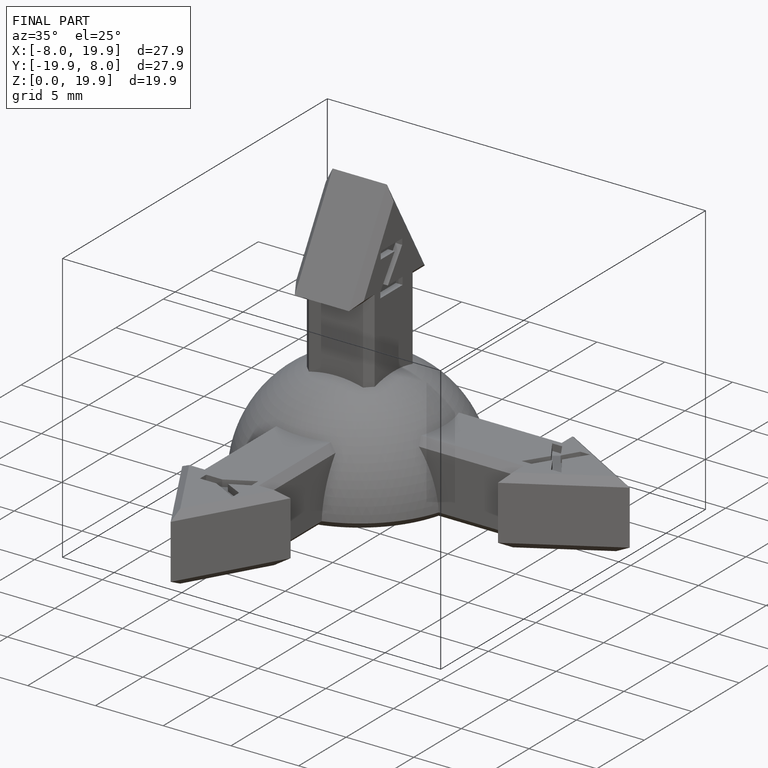
[diagram: finished part — iso view with bounding-box wireframe]
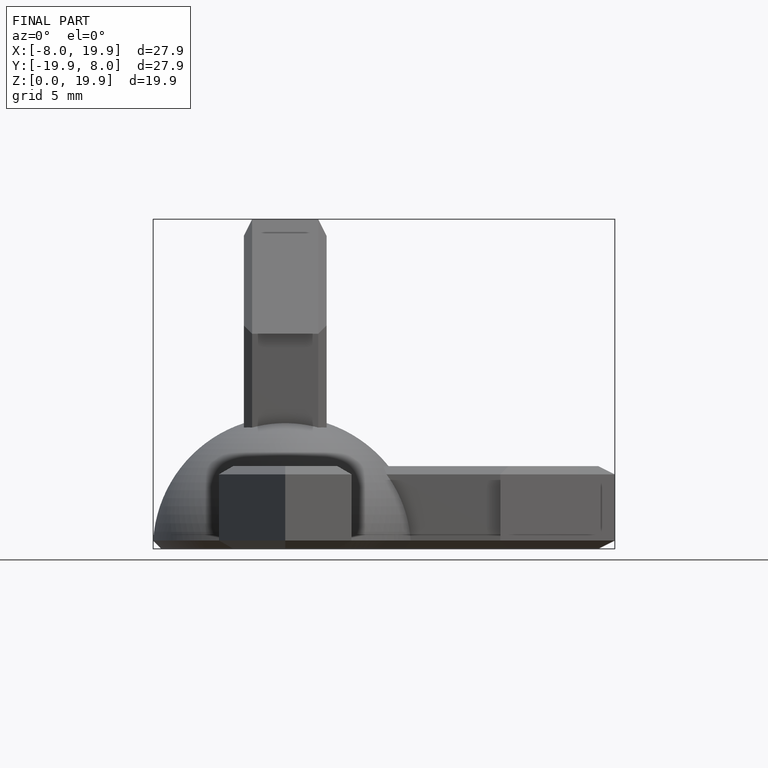
[diagram: finished part — front view with bounding-box wireframe]
